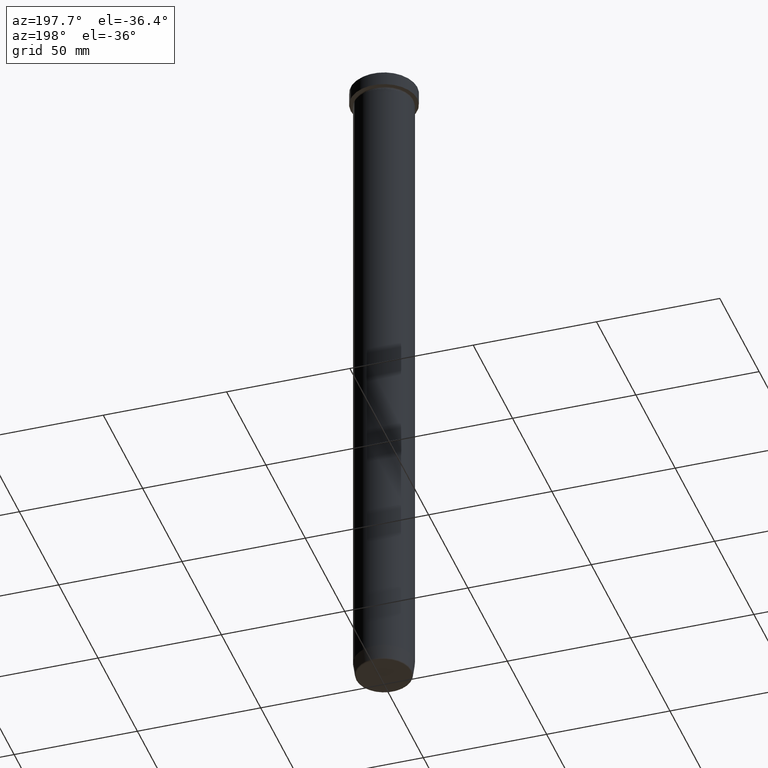
[diagram: clean part render]
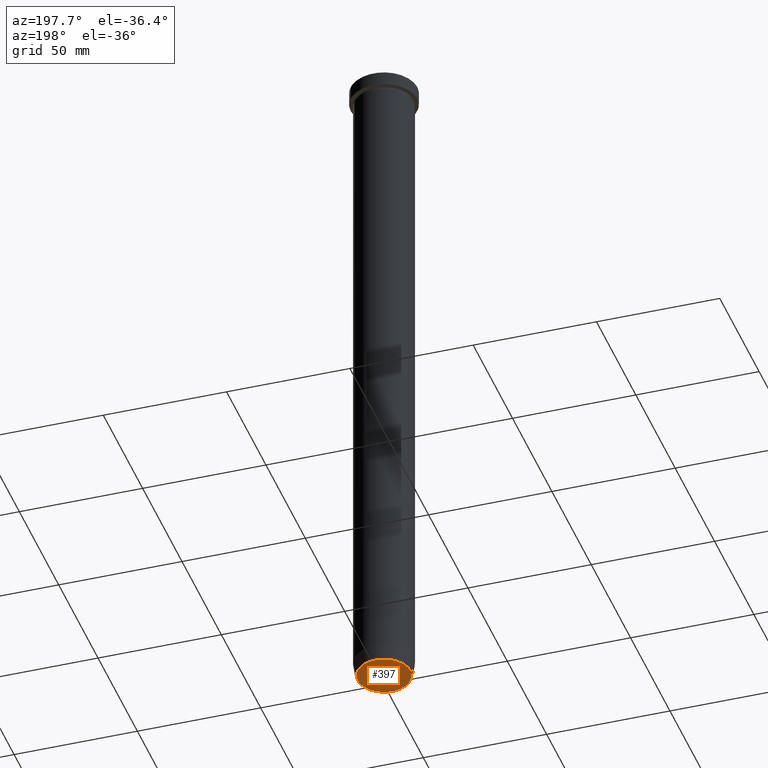
[diagram: same view with one face highlighted and labeled with its STEP entity id]
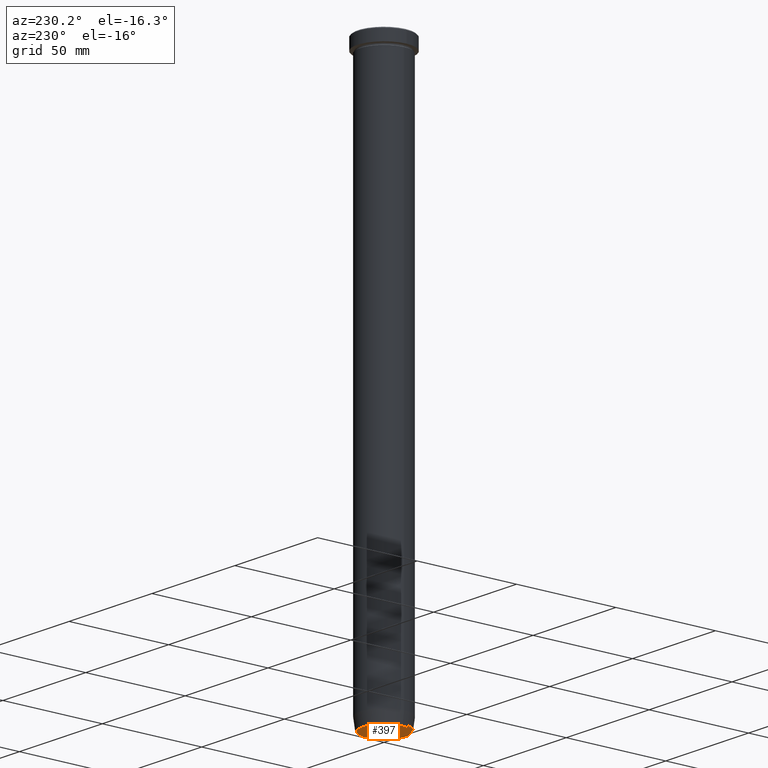
[diagram: same view with one face highlighted and labeled with its STEP entity id]
A machine part, auxiliary view. The second image highlights one B-rep face of the part: STEP entity #397.
A second angle (auxiliary view) of the same face is appended — the face is thin or edge-on in the first view.
In plain terms, the highlighted planar face has unit normal (0, -0, 1).
Its self-contained STEP definition (entity closure, byte-faithful):
#36 = PLANE ( 'NONE',  #394 ) ;
#88 = AXIS2_PLACEMENT_3D ( 'NONE', #185, #554, #453 ) ;
#128 = CIRCLE ( 'NONE', #88, 10.72211162287753083 ) ;
#163 = ORIENTED_EDGE ( 'NONE', *, *, #408, .T. ) ;
#185 = CARTESIAN_POINT ( 'NONE',  ( 0.000000000000000000, 0.000000000000000000, -280.0000000000000000 ) ) ;
#227 = CARTESIAN_POINT ( 'NONE',  ( 0.000000000000000000, 2.449293598294706434E-14, -280.0000000000000000 ) ) ;
#268 = FACE_OUTER_BOUND ( 'NONE', #275, .T. ) ;
#275 = EDGE_LOOP ( 'NONE', ( #163, #347 ) ) ;
#281 = VERTEX_POINT ( 'NONE', #454 ) ;
#310 = EDGE_CURVE ( 'NONE', #281, #380, #383, .T. ) ;
#322 = CARTESIAN_POINT ( 'NONE',  ( 0.000000000000000000, 0.000000000000000000, -280.0000000000000000 ) ) ;
#347 = ORIENTED_EDGE ( 'NONE', *, *, #310, .T. ) ;
#371 = CARTESIAN_POINT ( 'NONE',  ( 10.72211162287753083, 0.000000000000000000, -280.0000000000000000 ) ) ;
#380 = VERTEX_POINT ( 'NONE', #371 ) ;
#383 = CIRCLE ( 'NONE', #503, 10.72211162287753083 ) ;
#394 = AXIS2_PLACEMENT_3D ( 'NONE', #227, #409, #593 ) ;
#397 = ADVANCED_FACE ( 'NONE', ( #268 ), #36, .F. ) ;
#408 = EDGE_CURVE ( 'NONE', #380, #281, #128, .T. ) ;
#409 = DIRECTION ( 'NONE',  ( 0.000000000000000000, -0.000000000000000000, 1.000000000000000000 ) ) ;
#418 = DIRECTION ( 'NONE',  ( 0.000000000000000000, 0.000000000000000000, -1.000000000000000000 ) ) ;
#453 = DIRECTION ( 'NONE',  ( 1.000000000000000000, 0.000000000000000000, 0.000000000000000000 ) ) ;
#454 = CARTESIAN_POINT ( 'NONE',  ( -10.72211162287753083, 1.343398183422815038E-15, -280.0000000000000000 ) ) ;
#503 = AXIS2_PLACEMENT_3D ( 'NONE', #322, #418, #598 ) ;
#554 = DIRECTION ( 'NONE',  ( 0.000000000000000000, 0.000000000000000000, -1.000000000000000000 ) ) ;
#593 = DIRECTION ( 'NONE',  ( 1.000000000000000000, 0.000000000000000000, 0.000000000000000000 ) ) ;
#598 = DIRECTION ( 'NONE',  ( 1.000000000000000000, 0.000000000000000000, 0.000000000000000000 ) ) ;